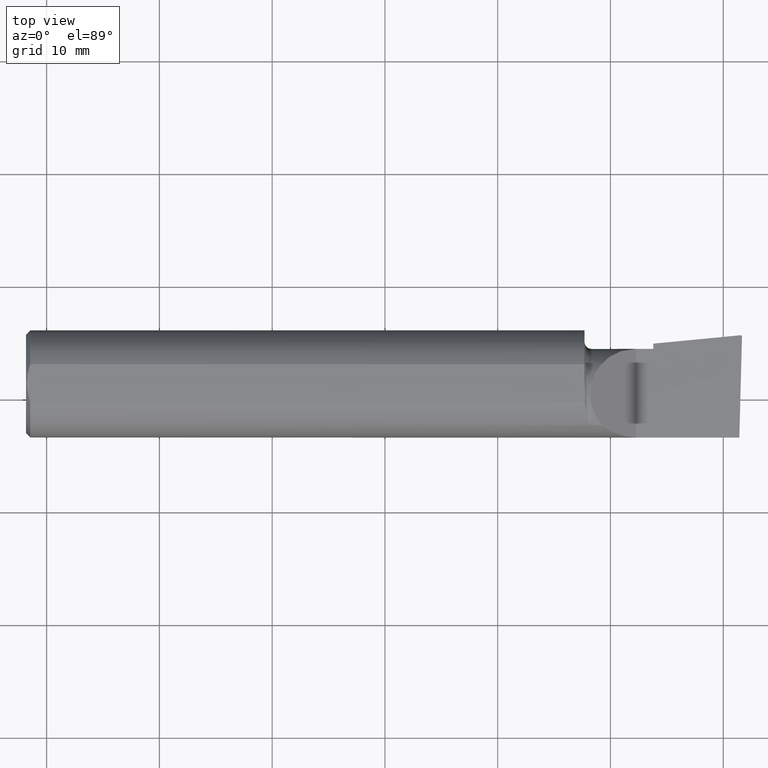
[diagram: clean part render]
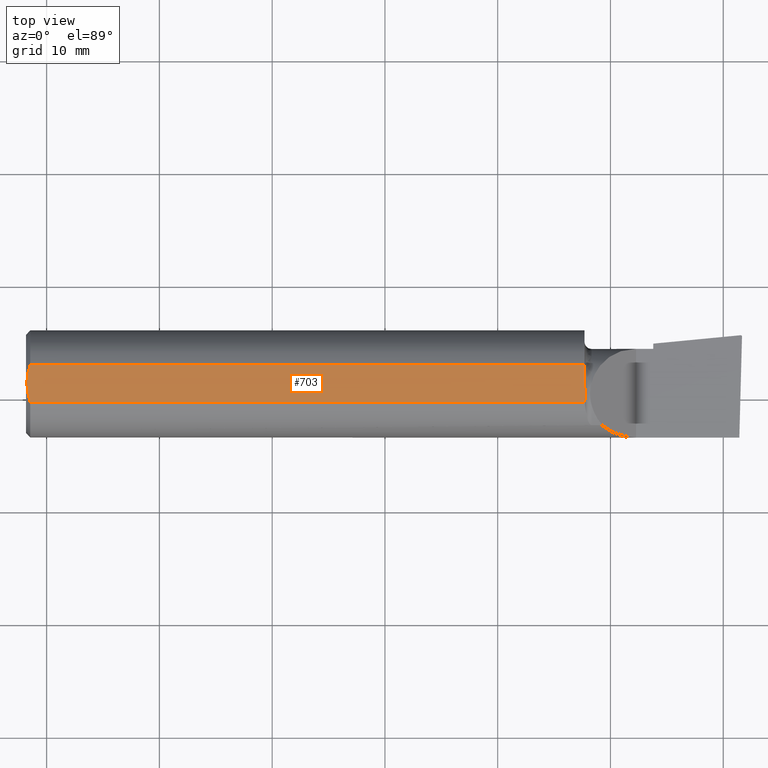
[diagram: same view with one face highlighted and labeled with its STEP entity id]
A machine part, top view. The second image highlights one B-rep face of the part: STEP entity #703.
In plain terms, the highlighted planar face has unit normal (0, 0, -1).
Its self-contained STEP definition (entity closure, byte-faithful):
#3 = CARTESIAN_POINT ( 'NONE',  ( 1.949999999999999956, 0.06597272163553667690, 0.1753499999999999504 ) ) ;
#5 = ORIENTED_EDGE ( 'NONE', *, *, #1226, .T. ) ;
#34 = CARTESIAN_POINT ( 'NONE',  ( 1.950566640140851460, 0.001959681260578929971, 0.1753499999999999504 ) ) ;
#45 = VECTOR ( 'NONE', #1217, 39.37007874015748143 ) ;
#91 = DIRECTION ( 'NONE',  ( 1.000000000000000000, 0.000000000000000000, 0.000000000000000000 ) ) ;
#98 = EDGE_CURVE ( 'NONE', #1133, #679, #805, .T. ) ;
#100 = LINE ( 'NONE', #1056, #316 ) ;
#105 = CARTESIAN_POINT ( 'NONE',  ( 0.007477619062988611308, 0.04461058841425279142, 0.1753499999999999504 ) ) ;
#121 = CARTESIAN_POINT ( 'NONE',  ( 1.951937530487824812, -0.04690009434802168420, 0.1753499999999999504 ) ) ;
#128 = VERTEX_POINT ( 'NONE', #521 ) ;
#154 = VERTEX_POINT ( 'NONE', #226 ) ;
#199 = CARTESIAN_POINT ( 'NONE',  ( 2.500000000000000000, 0.06597272163553667690, 0.1753499999999999504 ) ) ;
#207 = CARTESIAN_POINT ( 'NONE',  ( 0.002999999999999554239, 0.02270494013651297438, 0.1753499999999999504 ) ) ;
#220 = EDGE_LOOP ( 'NONE', ( #582, #373, #5, #318, #311, #886, #1100 ) ) ;
#223 = VERTEX_POINT ( 'NONE', #367 ) ;
#226 = CARTESIAN_POINT ( 'NONE',  ( 0.01499999999999970281, 0.06597272163553667690, 0.1753499999999999504 ) ) ;
#247 = CARTESIAN_POINT ( 'NONE',  ( 1.951937530487824812, -0.03734999999999997350, 0.1753499999999999504 ) ) ;
#295 = EDGE_CURVE ( 'NONE', #223, #1133, #1099, .T. ) ;
#300 = VECTOR ( 'NONE', #91, 39.37007874015748143 ) ;
#311 = ORIENTED_EDGE ( 'NONE', *, *, #519, .F. ) ;
#316 = VECTOR ( 'NONE', #941, 39.37007874015748143 ) ;
#318 = ORIENTED_EDGE ( 'NONE', *, *, #455, .T. ) ;
#319 = CARTESIAN_POINT ( 'NONE',  ( 1.951544626060909282, -0.01768558234227715631, 0.1753499999999999781 ) ) ;
#345 = B_SPLINE_CURVE_WITH_KNOTS ( 'NONE', 3,
 ( #486, #105, #207, #683 ),
 .UNSPECIFIED., .F., .F.,
 ( 4, 4 ),
 ( 0.003757229488784579168, 0.005453502051446296704 ),
 .UNSPECIFIED. ) ;
#351 = CARTESIAN_POINT ( 'NONE',  ( 2.500000000000000000, -0.06597272163553667690, 0.1753499999999999504 ) ) ;
#367 = CARTESIAN_POINT ( 'NONE',  ( 1.951098502765447940, -0.06597272163553667690, 0.1753499999999999504 ) ) ;
#373 = ORIENTED_EDGE ( 'NONE', *, *, #1051, .F. ) ;
#389 = PLANE ( 'NONE',  #874 ) ;
#395 = VERTEX_POINT ( 'NONE', #3 ) ;
#403 = CARTESIAN_POINT ( 'NONE',  ( 0.000000000000000000, 0.1000000000000000056, 0.1753499999999999504 ) ) ;
#420 = CARTESIAN_POINT ( 'NONE',  ( 1.951937530487824368, -0.02751656439603215182, 0.1753499999999999781 ) ) ;
#453 = LINE ( 'NONE', #351, #45 ) ;
#455 = EDGE_CURVE ( 'NONE', #516, #128, #920, .T. ) ;
#476 = CARTESIAN_POINT ( 'NONE',  ( 1.951937530487824812, -0.03734999999999997350, 0.1753499999999999504 ) ) ;
#486 = CARTESIAN_POINT ( 'NONE',  ( 0.01499999999999970281, 0.06597272163553667690, 0.1753499999999999504 ) ) ;
#516 = VERTEX_POINT ( 'NONE', #1241 ) ;
#519 = EDGE_CURVE ( 'NONE', #223, #128, #453, .T. ) ;
#521 = CARTESIAN_POINT ( 'NONE',  ( 0.01499999999999970281, -0.06597272163553674629, 0.1753499999999999504 ) ) ;
#535 = CARTESIAN_POINT ( 'NONE',  ( 0.007501547290577734520, -0.04467854003619180919, 0.1753499999999999504 ) ) ;
#582 = ORIENTED_EDGE ( 'NONE', *, *, #992, .F. ) ;
#658 = CARTESIAN_POINT ( 'NONE',  ( 0.002999999999999556841, 2.147418157515057056E-17, 0.1753499999999999504 ) ) ;
#679 = VERTEX_POINT ( 'NONE', #789 ) ;
#683 = CARTESIAN_POINT ( 'NONE',  ( 0.002999999999999556841, 2.147418157515057056E-17, 0.1753499999999999504 ) ) ;
#703 = ADVANCED_FACE ( 'NONE', ( #1159 ), #389, .F. ) ;
#742 = CARTESIAN_POINT ( 'NONE',  ( 0.01499999999999970281, -0.06597272163553674629, 0.1753499999999999504 ) ) ;
#752 = LINE ( 'NONE', #199, #300 ) ;
#754 = CARTESIAN_POINT ( 'NONE',  ( 0.002999999999999548167, -0.02272015056826471799, 0.1753499999999999504 ) ) ;
#766 = CARTESIAN_POINT ( 'NONE',  ( 1.951937530487824812, -0.03734999999999997350, 0.1753499999999999504 ) ) ;
#789 = CARTESIAN_POINT ( 'NONE',  ( 1.949999999999999956, 0.02161929285653694729, 0.1753499999999999504 ) ) ;
#805 = B_SPLINE_CURVE_WITH_KNOTS ( 'NONE', 3,
 ( #247, #420, #319, #34, #1002, #1089 ),
 .UNSPECIFIED., .F., .F.,
 ( 4, 2, 4 ),
 ( 0.01128036008136128199, 0.01201399807793010477, 0.01274763607449892582 ),
 .UNSPECIFIED. ) ;
#869 = DIRECTION ( 'NONE',  ( -1.000000000000000000, 0.000000000000000000, 0.000000000000000000 ) ) ;
#874 = AXIS2_PLACEMENT_3D ( 'NONE', #403, #883, #869 ) ;
#878 = CARTESIAN_POINT ( 'NONE',  ( 1.951569518159246952, -0.05643809977709480369, 0.1753499999999999504 ) ) ;
#883 = DIRECTION ( 'NONE',  ( -0.000000000000000000, 0.000000000000000000, -1.000000000000000000 ) ) ;
#886 = ORIENTED_EDGE ( 'NONE', *, *, #295, .T. ) ;
#920 = B_SPLINE_CURVE_WITH_KNOTS ( 'NONE', 3,
 ( #658, #754, #535, #742 ),
 .UNSPECIFIED., .F., .F.,
 ( 4, 4 ),
 ( 0.005453502051446296704, 0.007150910976410299741 ),
 .UNSPECIFIED. ) ;
#941 = DIRECTION ( 'NONE',  ( 0.000000000000000000, -1.000000000000000000, 0.000000000000000000 ) ) ;
#992 = EDGE_CURVE ( 'NONE', #395, #679, #100, .T. ) ;
#1002 = CARTESIAN_POINT ( 'NONE',  ( 1.949999999999999956, 0.01177960468071028929, 0.1753499999999999504 ) ) ;
#1051 = EDGE_CURVE ( 'NONE', #154, #395, #752, .T. ) ;
#1056 = CARTESIAN_POINT ( 'NONE',  ( 1.949999999999999956, 0.1000000000000000056, 0.1753499999999999504 ) ) ;
#1089 = CARTESIAN_POINT ( 'NONE',  ( 1.949999999999999956, 0.02161929285653694729, 0.1753499999999999504 ) ) ;
#1099 = B_SPLINE_CURVE_WITH_KNOTS ( 'NONE', 3,
 ( #1160, #878, #121, #476 ),
 .UNSPECIFIED., .F., .F.,
 ( 4, 4 ),
 ( 0.01056786117795678256, 0.01128036008136128199 ),
 .UNSPECIFIED. ) ;
#1100 = ORIENTED_EDGE ( 'NONE', *, *, #98, .T. ) ;
#1133 = VERTEX_POINT ( 'NONE', #766 ) ;
#1159 = FACE_OUTER_BOUND ( 'NONE', #220, .T. ) ;
#1160 = CARTESIAN_POINT ( 'NONE',  ( 1.951098502765447940, -0.06597272163553667690, 0.1753499999999999504 ) ) ;
#1217 = DIRECTION ( 'NONE',  ( -1.000000000000000000, -0.000000000000000000, -0.000000000000000000 ) ) ;
#1226 = EDGE_CURVE ( 'NONE', #154, #516, #345, .T. ) ;
#1241 = CARTESIAN_POINT ( 'NONE',  ( 0.002999999999999556841, 2.147418157515057056E-17, 0.1753499999999999504 ) ) ;